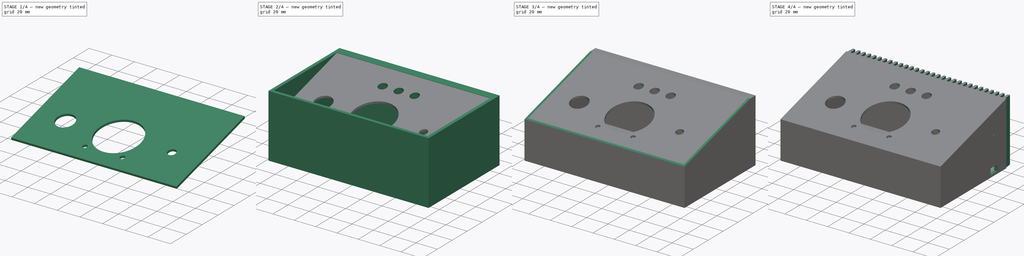
[diagram: build sequence overview — one tinted view per stage of 4, left to right]
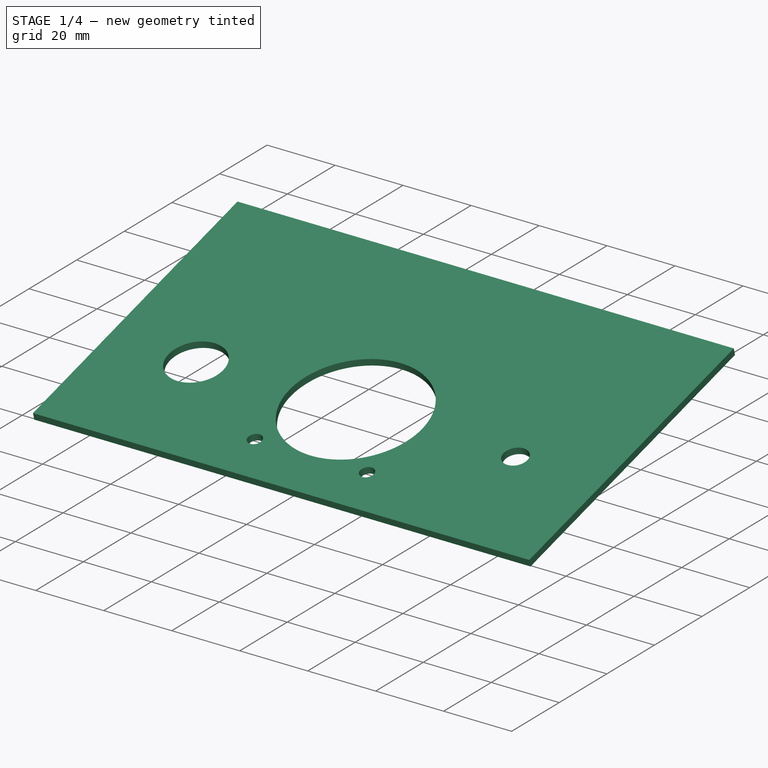
[diagram: stage 1 of 4 — iso view after this stage's code; geometry added in this stage tinted green]
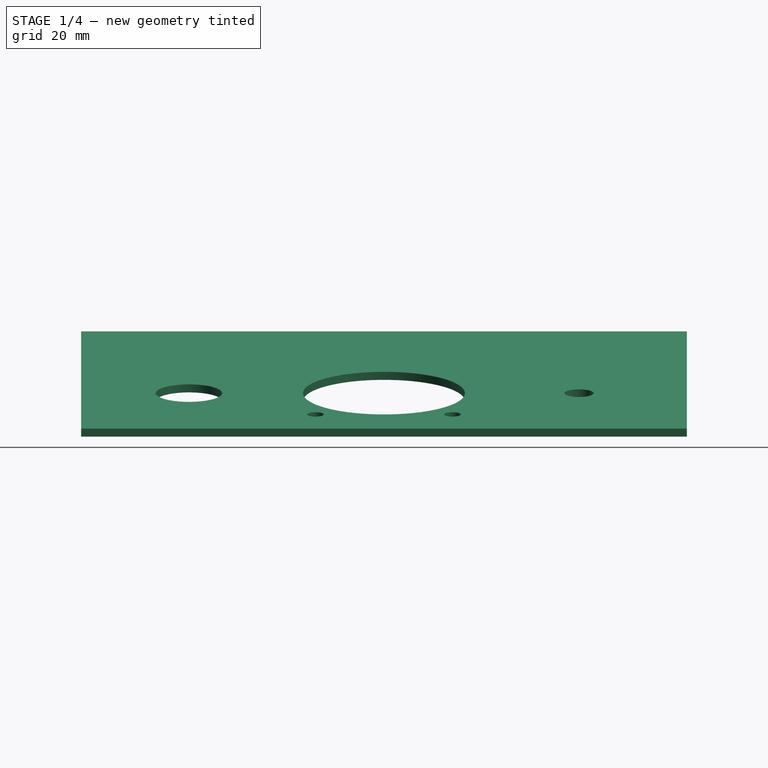
[diagram: stage 1 of 4 — front view after this stage's code; geometry added in this stage tinted green]
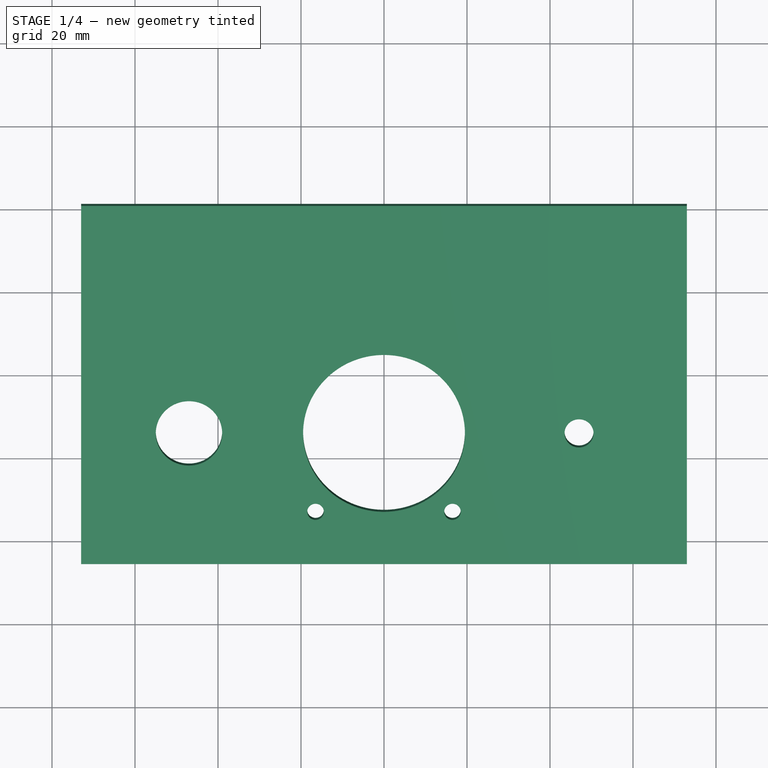
[diagram: stage 1 of 4 — top view after this stage's code; geometry added in this stage tinted green]
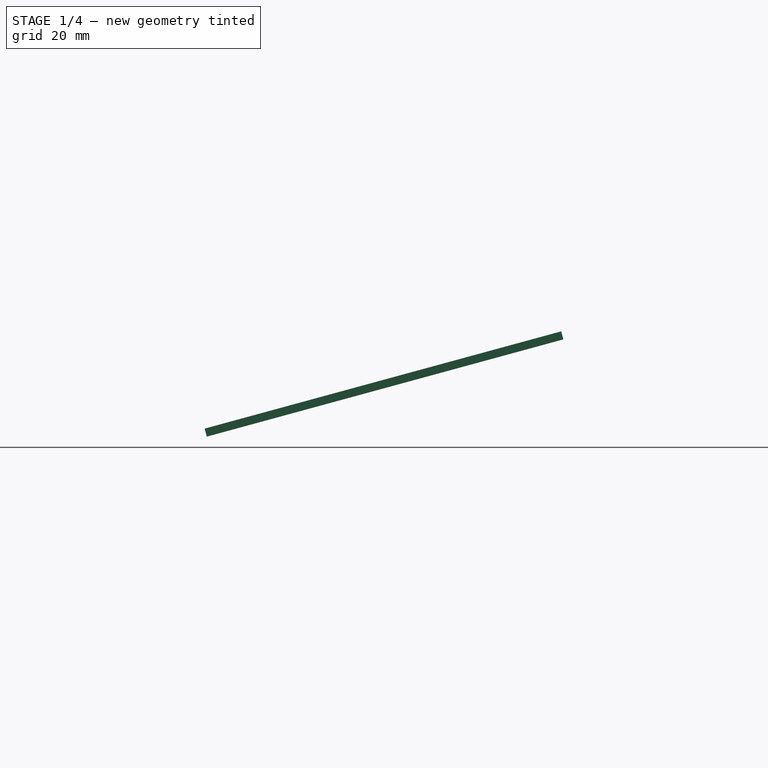
[diagram: stage 1 of 4 — right view after this stage's code; geometry added in this stage tinted green]
FCSTD DOCUMENT  (FreeCAD 0.19R24276 (Git))
Label: AnalogTimer
License: All rights reserved
LicenseURL: http://en.wikipedia.org/wiki/All_rights_reserved
objects: Sketcher::SketchObject×11, PartDesign::Pocket×9, PartDesign::Pad×2, PartDesign::Body×2, PartDesign::ShapeBinder×1, PartDesign::Plane×1
note: 37 computed .brp shape members not serialized (recipe doc carries the construction recipe); baked Part::Feature solids carry a one-line shape summary decoded from their .brp

FEATURE [PartDesign::Body] Body  label="Box"
  Group = -> [Sketch,Pad,Sketch001,Pocket,Sketch003,Pocket001,Sketch004,Pocket002,Sketch005,Pocket003,Sketch006,Pocket004,Sketch007,Pocket005]
  Origin = -> Origin
  Tip = -> Pocket005
FEATURE [PartDesign::ShapeBinder] CopyPocket005  label="TopPlateRecessCopy"
  TraceSupport = false
FEATURE [PartDesign::Plane] DatumPlane  label="TopPlateRestPlane"
  Length = 170.823
  MapMode = 5
  Placement = pos=(0,-11.6468,42.7051) rot=(1,0,0;0.266252rad)
  ResizeMode = 0
  Support = -> [CopyPocket005]
  Width = 130.332
FEATURE [Sketcher::SketchObject] Sketch008
  ExternalGeometry = -> [CopyPocket005]
  FullyConstrained = true
  MapMode = 5
  Placement = pos=(0,-11.6468,42.7051) rot=(1,0,0;0.266252rad)
  Support = -> [DatumPlane]
  sketch-geometry (4):
    g0: LineSegment StartX=-73 StartY=54.5603 StartZ=0 EndX=73 EndY=54.5603 EndZ=0
    g1: LineSegment StartX=73 StartY=54.5603 StartZ=0 EndX=73 EndY=-34.5076 EndZ=0
    g2: LineSegment StartX=73 StartY=-34.5076 StartZ=0 EndX=-73 EndY=-34.5076 EndZ=0
    g3: LineSegment StartX=-73 StartY=-34.5076 StartZ=0 EndX=-73 EndY=54.5603 EndZ=0
  constraints (10):
    c: Coincident(g0,g1)
    c: Coincident(g1,g2)
    c: Coincident(g2,g3)
    c: Coincident(g3,g0)
    c: Horizontal(g0)
    c: Horizontal(g2)
    c: Vertical(g1)
    c: Vertical(g3)
    c: Coincident(g0,g-5)
    c: Coincident(g1,g-4)
FEATURE [PartDesign::Pad] Pad001  label="Body"
  Direction = (1,1,1)
  Length = 2
  Length2 = 100
  Placement = pos=(0,-11.6468,42.7051) rot=(1,0,0;0.266252rad)
  Profile = -> Sketch008
  Type = 0
FEATURE [Sketcher::SketchObject] Sketch009
  ExternalGeometry = -> [Pad001]
  FullyConstrained = true
  MapMode = 5
  Placement = pos=(0,-12.1731,44.6346) rot=(1,0,0;0.266252rad)
  Support = -> [Pad001]
  sketch-geometry (9):
    g0: LineSegment StartX=-22.5 StartY=20.4924 StartZ=0 EndX=22.5 EndY=20.4924 EndZ=0
    g1: LineSegment StartX=22.5 StartY=20.4924 StartZ=0 EndX=22.5 EndY=-24.5076 EndZ=0
    g2: LineSegment StartX=22.5 StartY=-24.5076 StartZ=0 EndX=-22.5 EndY=-24.5076 EndZ=0
    g3: LineSegment StartX=-22.5 StartY=-24.5076 StartZ=0 EndX=-22.5 EndY=20.4924 EndZ=0
    g4: Circle CenterX=0 CenterY=-2.0076 CenterZ=0 NormalX=0 NormalY=0 NormalZ=1 AngleXU=0 Radius=19.5
    g5: LineSegment StartX=-22.5 StartY=-24.5076 StartZ=0 EndX=22.5 EndY=20.4924 EndZ=0
    g6: Circle CenterX=-16.5 CenterY=-21.5076 CenterZ=0 NormalX=0 NormalY=0 NormalZ=1 AngleXU=0 Radius=2
    g7: Circle CenterX=16.5 CenterY=-21.5076 CenterZ=0 NormalX=0 NormalY=0 NormalZ=1 AngleXU=0 Radius=2
    g8: LineSegment StartX=-16.5 StartY=-21.5076 StartZ=0 EndX=16.5 EndY=-21.5076 EndZ=0
  constraints (23):
    c: Coincident(g0,g1)
    c: Coincident(g1,g2)
    c: Coincident(g2,g3)
    c: Coincident(g3,g0)
    c: Horizontal(g2)
    c: Vertical(g1)
    c: Vertical(g3)
    c: DistanceX(g0,g0) = 45
    c: DistanceY(g1,g1) = 45
    c: Symmetric(g0,g0,g-2)
    c: DistanceY(g-6,g1) = 10
    c: Diameter(g4) = 39
    c: PointOnObject(g4,g-2)
    c: Coincident(g5,g2)
    c: Coincident(g5,g0)
    c: PointOnObject(g4,g5)
    c: DistanceX(g6,g7) = 33
    c: Coincident(g8,g6)
    c: Coincident(g8,g7)
    c: Diameter(g6) = 4
    c: Diameter(g7) = 4
    c: Tangent(g4,g8)
    c: Symmetric(g6,g7,g-2)
FEATURE [PartDesign::Pocket] Pocket006  label="AmmeterHoles"
  BaseFeature = -> Pad001
  Length = 5
  Length2 = 100
  Placement = pos=(0,-11.6468,42.7051) rot=(1,0,0;0.266252rad)
  Profile = -> Sketch009
  Type = 0
FEATURE [Sketcher::SketchObject] Sketch010
  ExternalGeometry = -> [Pocket006]
  FullyConstrained = true
  MapMode = 5
  Placement = pos=(0,-12.1731,44.6346) rot=(1,0,0;0.266252rad)
  Support = -> [Pocket006]
  sketch-geometry (3):
    g0: Circle CenterX=-47 CenterY=-2.0076 CenterZ=0 NormalX=0 NormalY=0 NormalZ=1 AngleXU=0 Radius=8
    g1: Circle CenterX=47 CenterY=-2.0076 CenterZ=0 NormalX=0 NormalY=0 NormalZ=1 AngleXU=0 Radius=3.5
    g2: LineSegment StartX=-47 StartY=-2.0076 StartZ=0 EndX=47 EndY=-2.0076 EndZ=0
  constraints (8):
    c: Diameter(g0) = 16
    c: Diameter(g1) = 7
    c: Horizontal(g2)
    c: PointOnObject(g-3,g2)
    c: Coincident(g2,g0)
    c: Coincident(g1,g2)
    c: DistanceX(g-3,g1) = 47
    c: DistanceX(g0,g-3) = 47
FEATURE [PartDesign::Pocket] Pocket007  label="ControlsHoles"
  BaseFeature = -> Pocket006
  Length = 5
  Length2 = 100
  Placement = pos=(0,-11.6468,42.7051) rot=(1,0,0;0.266252rad)
  Profile = -> Sketch010
  Type = 0
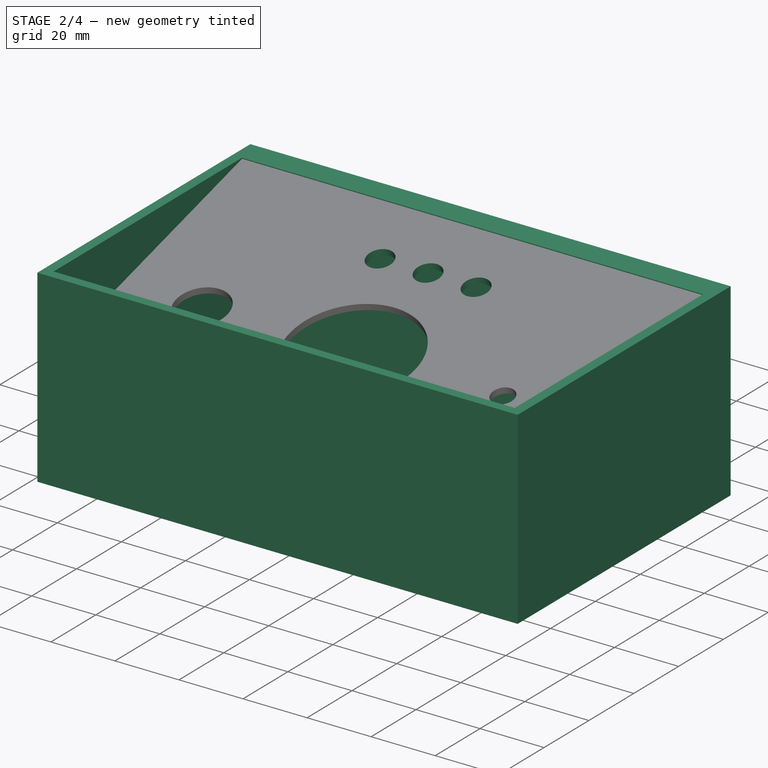
[diagram: stage 2 of 4 — iso view after this stage's code; geometry added in this stage tinted green]
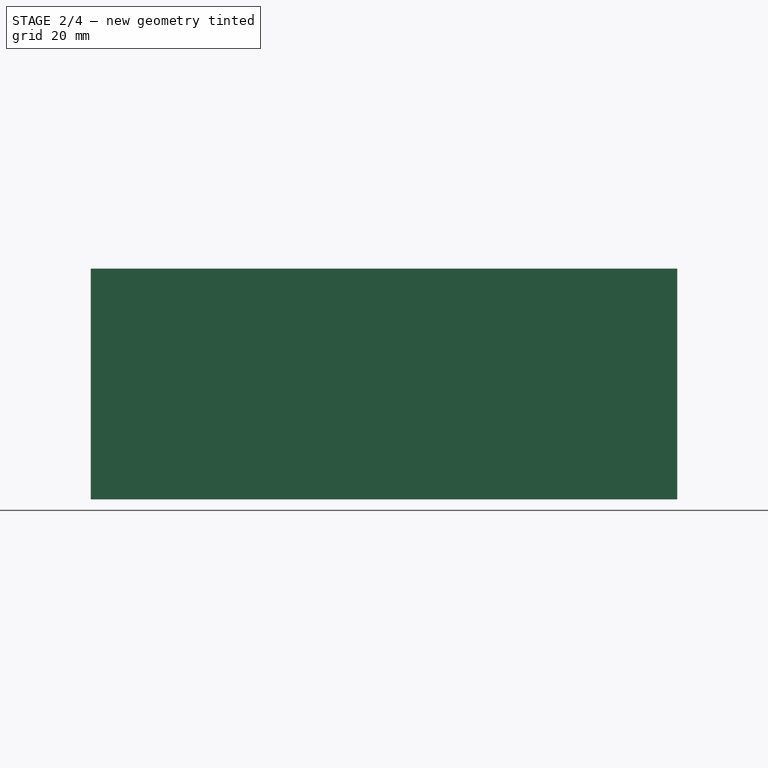
[diagram: stage 2 of 4 — front view after this stage's code; geometry added in this stage tinted green]
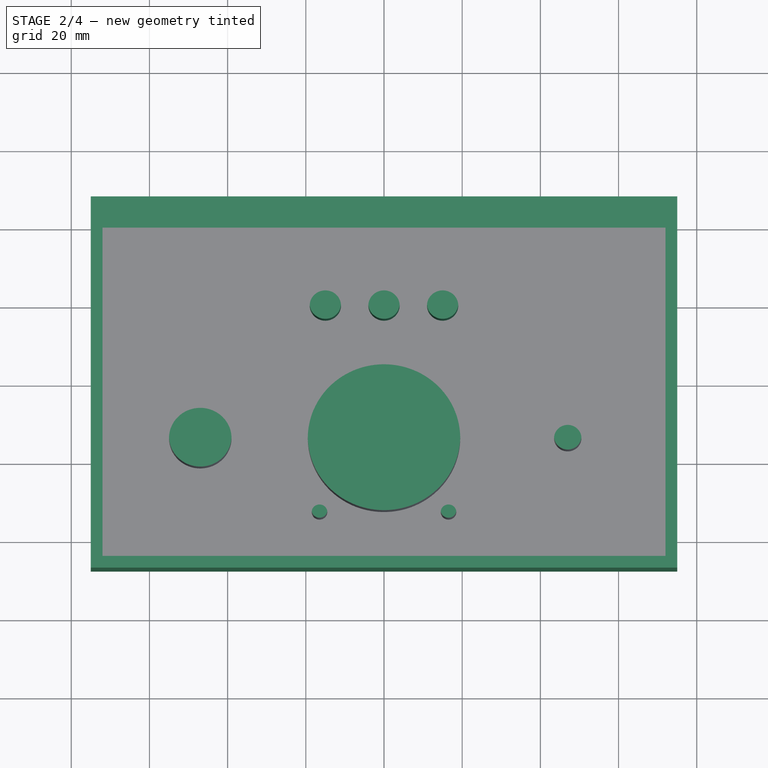
[diagram: stage 2 of 4 — top view after this stage's code; geometry added in this stage tinted green]
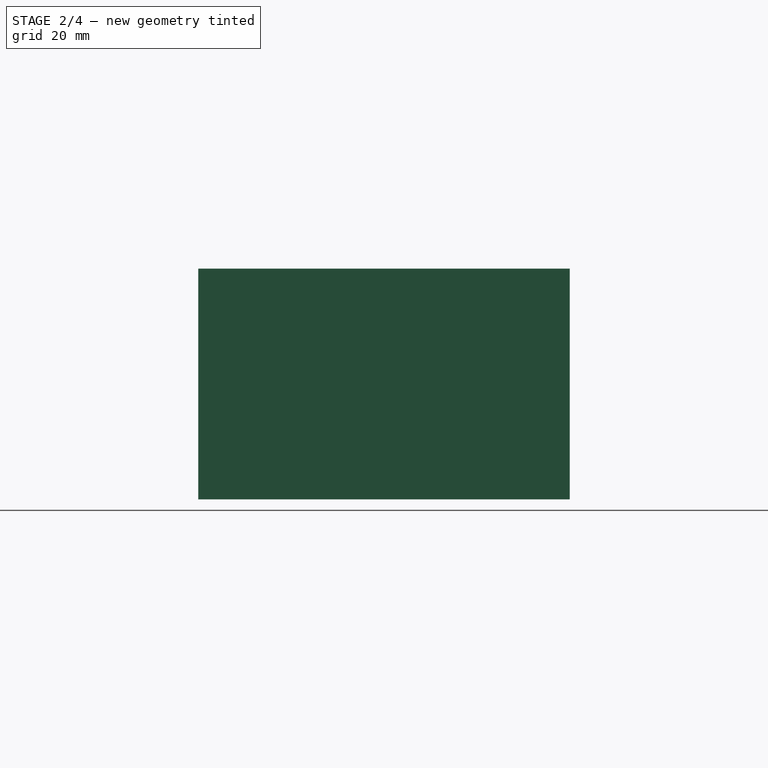
[diagram: stage 2 of 4 — right view after this stage's code; geometry added in this stage tinted green]
FEATURE [Sketcher::SketchObject] Sketch
  FullyConstrained = true
  MapMode = 5
  Support = -> [XY_Plane]
  sketch-geometry (4):
    g0: LineSegment StartX=-75 StartY=47.5 StartZ=0 EndX=75 EndY=47.5 EndZ=0
    g1: LineSegment StartX=75 StartY=47.5 StartZ=0 EndX=75 EndY=-47.5 EndZ=0
    g2: LineSegment StartX=75 StartY=-47.5 StartZ=0 EndX=-75 EndY=-47.5 EndZ=0
    g3: LineSegment StartX=-75 StartY=-47.5 StartZ=0 EndX=-75 EndY=47.5 EndZ=0
  constraints (10):
    c: Coincident(g0,g1)
    c: Coincident(g1,g2)
    c: Coincident(g2,g3)
    c: Coincident(g3,g0)
    c: Horizontal(g2)
    c: Vertical(g3)
    c: DistanceY(g3,g3) = 95
    c: DistanceX(g0,g0) = 150
    c: Symmetric(g0,g0,g-2)
    c: Symmetric(g0,g1,g-1)
FEATURE [PartDesign::Pad] Pad  label="BodyVolume"
  Direction = (1,1,1)
  Length = 59
  Length2 = 100
  Profile = -> Sketch
  Type = 0
FEATURE [Sketcher::SketchObject] Sketch001
  ExternalGeometry = -> [Pad]
  FullyConstrained = true
  MapMode = 5
  Placement = pos=(0,0,59) rot=(0,0,1;0rad)
  Support = -> [Pad]
  sketch-geometry (4):
    g0: LineSegment StartX=-72 StartY=39.5 StartZ=0 EndX=72 EndY=39.5 EndZ=0
    g1: LineSegment StartX=72 StartY=39.5 StartZ=0 EndX=72 EndY=-44.5 EndZ=0
    g2: LineSegment StartX=72 StartY=-44.5 StartZ=0 EndX=-72 EndY=-44.5 EndZ=0
    g3: LineSegment StartX=-72 StartY=-44.5 StartZ=0 EndX=-72 EndY=39.5 EndZ=0
  constraints (11):
    c: Coincident(g0,g1)
    c: Coincident(g1,g2)
    c: Coincident(g2,g3)
    c: Coincident(g3,g0)
    c: Horizontal(g2)
    c: Vertical(g3)
    c: DistanceY(g-5,g1) = 3
    c: Symmetric(g0,g0,g-2)
    c: DistanceX(g1,g-5) = 3
    c: Vertical(g1)
    c: DistanceY(g0,g-4) = 8
FEATURE [PartDesign::Pocket] Pocket  label="BodyHollow"
  BaseFeature = -> Pad
  Length = 57
  Length2 = 100
  Profile = -> Sketch001
  Type = 0
FEATURE [Sketcher::SketchObject] Sketch011
  ExternalGeometry = -> [Pocket007]
  FullyConstrained = true
  MapMode = 5
  Placement = pos=(0,-12.1731,44.6346) rot=(1,0,0;0.266252rad)
  Support = -> [Pocket007]
  sketch-geometry (7):
    g0: Circle CenterX=-15 CenterY=32.9924 CenterZ=0 NormalX=0 NormalY=0 NormalZ=1 AngleXU=0 Radius=4
    g1: Circle CenterX=0 CenterY=32.9924 CenterZ=0 NormalX=0 NormalY=0 NormalZ=1 AngleXU=0 Radius=4
    g2: Circle CenterX=15 CenterY=32.9924 CenterZ=0 NormalX=0 NormalY=0 NormalZ=1 AngleXU=0 Radius=4
    g3: LineSegment StartX=-15 StartY=32.9924 StartZ=0 EndX=15 EndY=32.9924 EndZ=0
    g4: Circle CenterX=-15 CenterY=32.9924 CenterZ=0 NormalX=0 NormalY=0 NormalZ=1 AngleXU=0 Radius=5
    g5: Circle CenterX=0 CenterY=32.9924 CenterZ=0 NormalX=0 NormalY=0 NormalZ=1 AngleXU=0 Radius=5
    g6: Circle CenterX=15 CenterY=32.9924 CenterZ=0 NormalX=0 NormalY=0 NormalZ=1 AngleXU=0 Radius=5
  constraints (16):
    c: Diameter(g0) = 8
    c: Diameter(g1) = 8
    c: Diameter(g2) = 8
    c: Symmetric(g3,g3,g-2)
    c: DistanceY(g-5,g3) = 35
    c: Coincident(g4,g0)
    c: Coincident(g5,g1)
    c: Coincident(g6,g2)
    c: Diameter(g4) = 10
    c: Diameter(g5) = 10
    c: Diameter(g6) = 10
    c: DistanceX(g3,g3) = 30
    c: Coincident(g0,g3)
    c: Coincident(g2,g3)
    c: PointOnObject(g1,g-2)
    c: PointOnObject(g1,g3)
FEATURE [PartDesign::Pocket] Pocket008  label="IndicatorsHoles"
  BaseFeature = -> Pocket007
  Length = 5
  Length2 = 100
  Placement = pos=(0,-11.6468,42.7051) rot=(1,0,0;0.266252rad)
  Profile = -> Sketch011
  Type = 0
FEATURE [PartDesign::Body] Body001  label="TopPlate"
  Group = -> [DatumPlane,CopyPocket005,Sketch008,Pad001,Sketch009,Pocket006,Sketch010,Pocket007,Sketch011,Pocket008]
  Origin = -> Origin001
  Tip = -> Pocket008
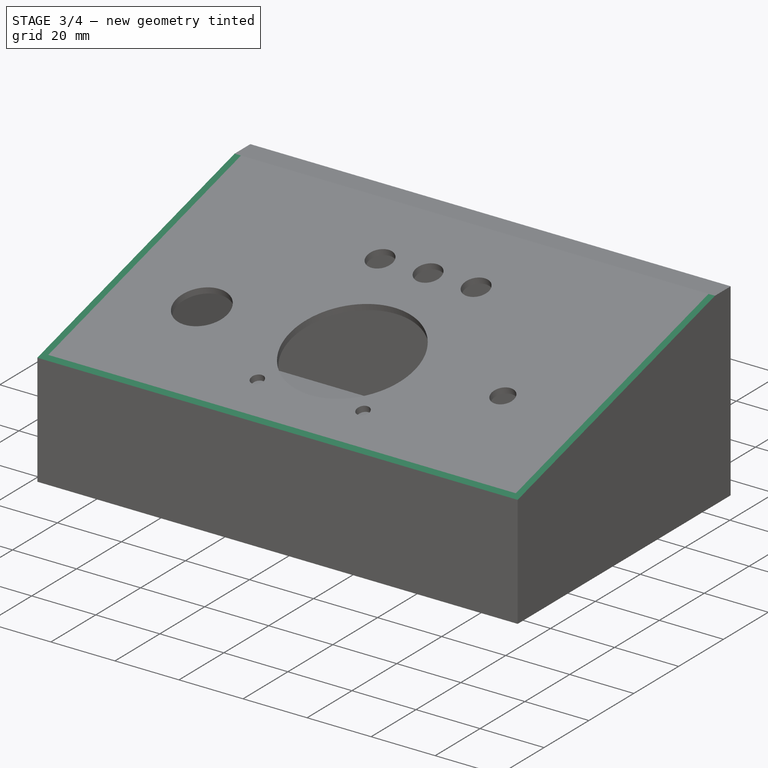
[diagram: stage 3 of 4 — iso view after this stage's code; geometry added in this stage tinted green]
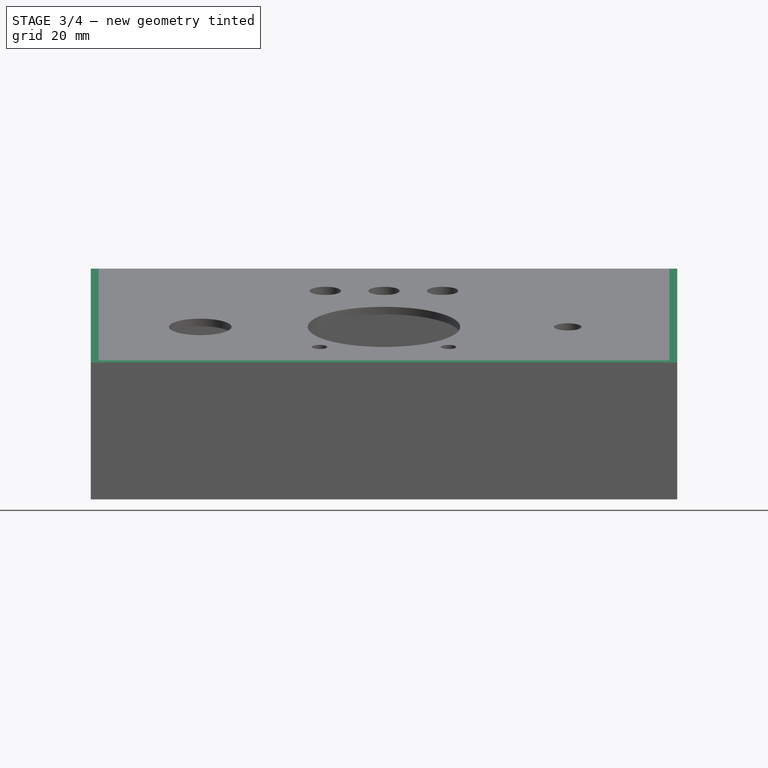
[diagram: stage 3 of 4 — front view after this stage's code; geometry added in this stage tinted green]
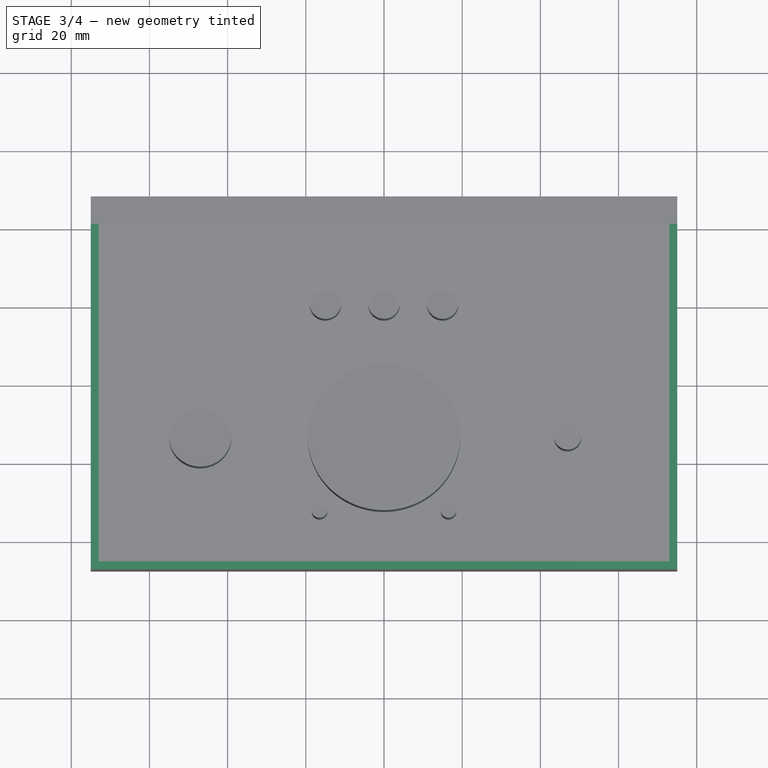
[diagram: stage 3 of 4 — top view after this stage's code; geometry added in this stage tinted green]
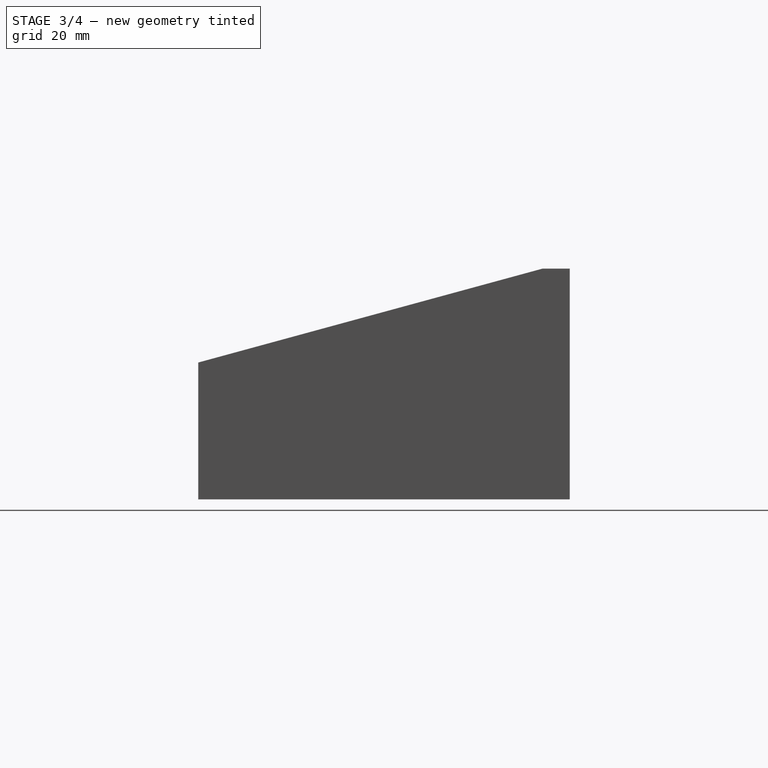
[diagram: stage 3 of 4 — right view after this stage's code; geometry added in this stage tinted green]
FEATURE [Sketcher::SketchObject] Sketch003
  ExternalGeometry = -> [Pocket]
  FullyConstrained = true
  MapMode = 5
  Placement = pos=(76,0,0) rot=(0.57735,0.57735,0.57735;2.0944rad)
  sketch-geometry (6):
    g0: LineSegment StartX=40.5 StartY=0 StartZ=0 EndX=40.5 EndY=59 EndZ=0
    g1: LineSegment StartX=40.5 StartY=59 StartZ=0 EndX=-47.5 EndY=35 EndZ=0
    g2: LineSegment StartX=-47.5 StartY=35 StartZ=0 EndX=-47.5 EndY=0 EndZ=0
    g3: LineSegment StartX=-47.5 StartY=35 StartZ=0 EndX=-47.5 EndY=59 EndZ=0
    g4: LineSegment StartX=-47.5 StartY=59 StartZ=0 EndX=40.5 EndY=59 EndZ=0
    g5: LineSegment StartX=40.5 StartY=59 StartZ=0 EndX=-47.5 EndY=35 EndZ=0
  constraints (15):
    c: Vertical(g0)
    c: Vertical(g2)
    c: DistanceY(g2,g2) = 35
    c: Coincident(g1,g0)
    c: Coincident(g1,g2)
    c: PointOnObject(g0,g-1)
    c: DistanceX(g0,g-3) = 7
    c: PointOnObject(g0,g-4)
    c: Coincident(g2,g-5)
    c: Coincident(g3,g1)
    c: Coincident(g3,g-5)
    c: Coincident(g4,g3)
    c: Coincident(g4,g0)
    c: Coincident(g5,g4)
    c: Coincident(g5,g3)
FEATURE [PartDesign::Pocket] Pocket001  label="SlantBodyCut"
  BaseFeature = -> Pocket
  Length = 5
  Length2 = 100
  Profile = -> Sketch003
  Type = 1
FEATURE [Sketcher::SketchObject] Sketch004
  ExternalGeometry = -> [Pocket001]
  FullyConstrained = true
  MapMode = 5
  Placement = pos=(0,-12.1731,44.6346) rot=(1,0,0;0.266252rad)
  Support = -> [Pocket001]
  sketch-geometry (4):
    g0: LineSegment StartX=-73 StartY=54.5603 StartZ=0 EndX=73 EndY=54.5603 EndZ=0
    g1: LineSegment StartX=73 StartY=54.5603 StartZ=0 EndX=73 EndY=-34.5076 EndZ=0
    g2: LineSegment StartX=73 StartY=-34.5076 StartZ=0 EndX=-73 EndY=-34.5076 EndZ=0
    g3: LineSegment StartX=-73 StartY=-34.5076 StartZ=0 EndX=-73 EndY=54.5603 EndZ=0
  constraints (11):
    c: Coincident(g0,g1)
    c: Coincident(g1,g2)
    c: Coincident(g2,g3)
    c: Coincident(g3,g0)
    c: Horizontal(g0)
    c: Vertical(g1)
    c: Vertical(g3)
    c: Symmetric(g2,g1,g-2)
    c: DistanceX(g-4,g1) = 1
    c: DistanceY(g1,g-4) = 1
    c: DistanceY(g-6,g0) = 1
FEATURE [PartDesign::Pocket] Pocket002  label="TopPlateRecess"
  BaseFeature = -> Pocket001
  Length = 2
  Length2 = 100
  Profile = -> Sketch004
  Type = 0
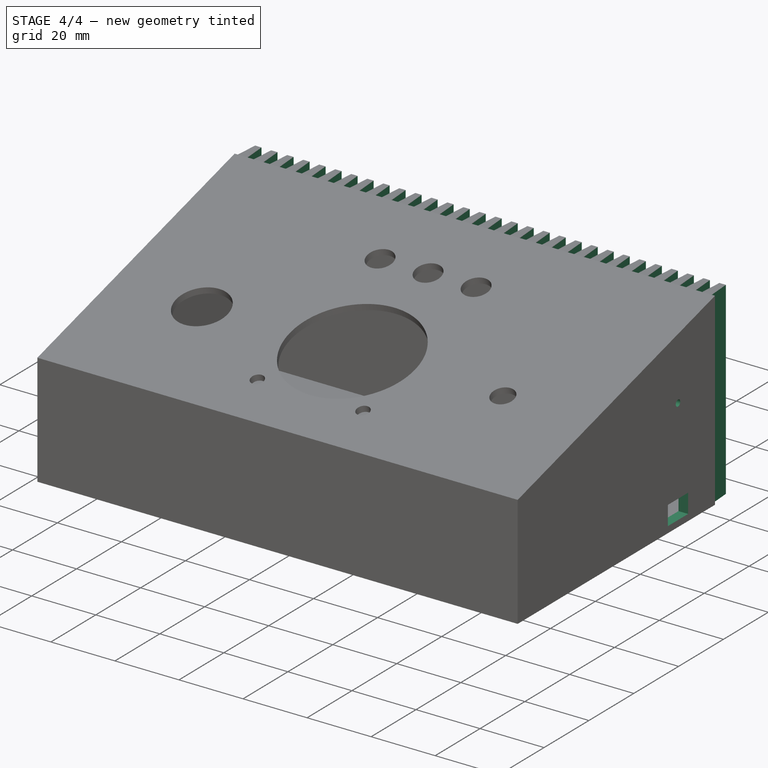
[diagram: stage 4 of 4 — iso view after this stage's code; geometry added in this stage tinted green]
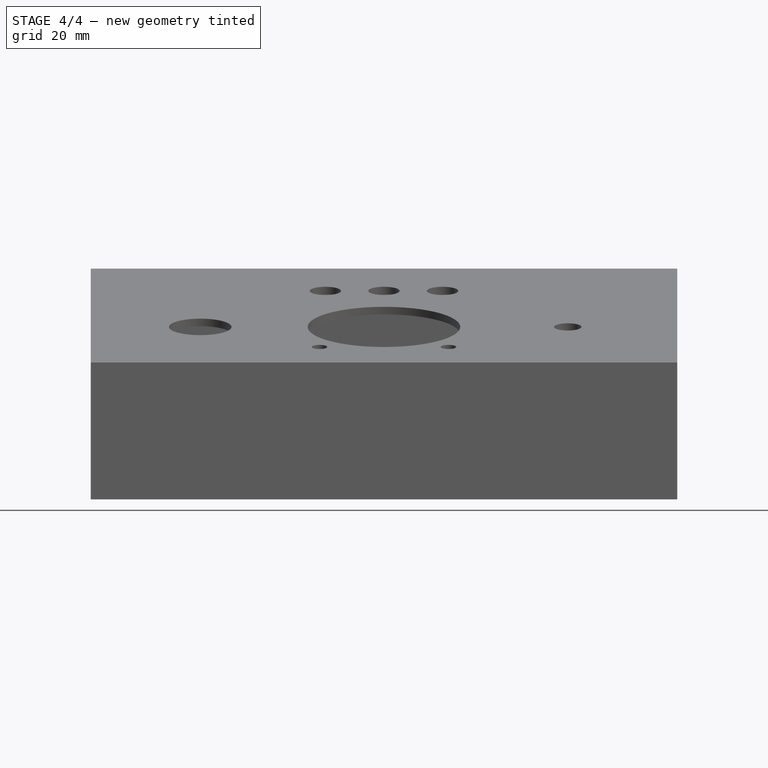
[diagram: stage 4 of 4 — front view after this stage's code; geometry added in this stage tinted green]
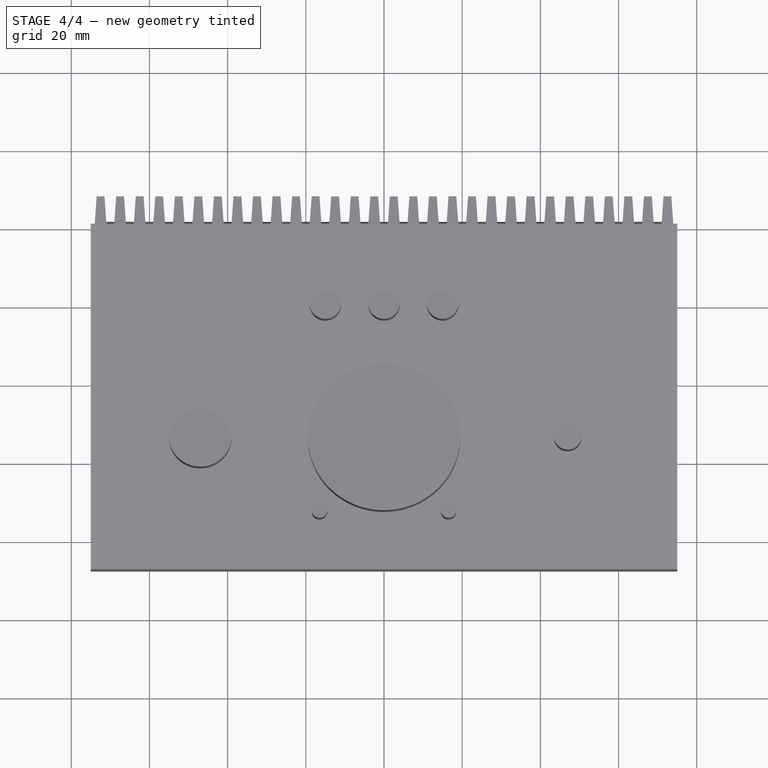
[diagram: stage 4 of 4 — top view after this stage's code; geometry added in this stage tinted green]
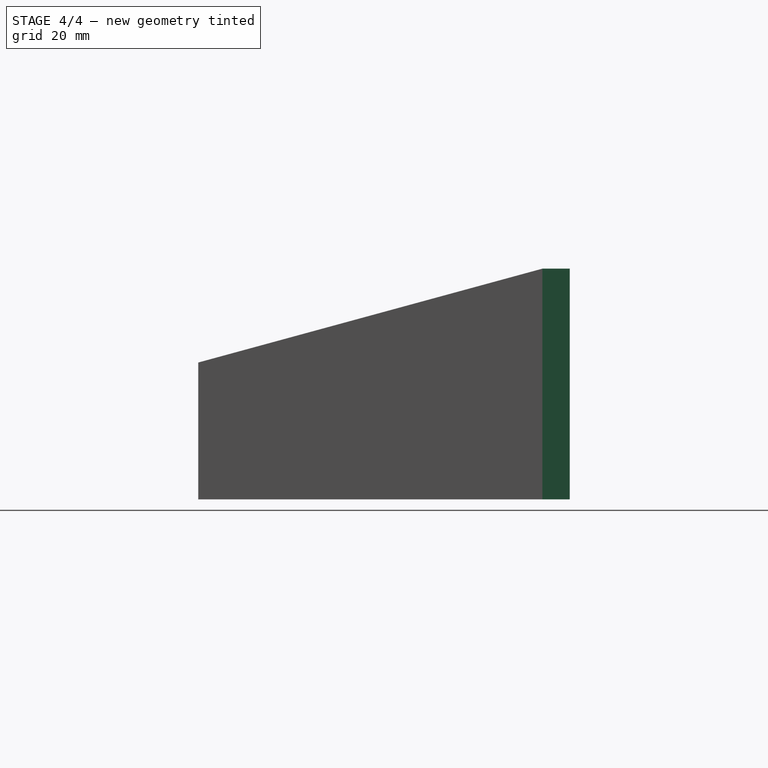
[diagram: stage 4 of 4 — right view after this stage's code; geometry added in this stage tinted green]
FEATURE [Sketcher::SketchObject] Sketch005
  ExternalGeometry = -> [Pocket002]
  FullyConstrained = false
  MapMode = 5
  Placement = pos=(0,0,59) rot=(0,0,1;0rad)
  Support = -> [Pocket002]
  sketch-geometry (156):
    g0: LineSegment StartX=-76.5 StartY=47.5 StartZ=0 EndX=-73.5 EndY=47.5 EndZ=0
    g1: LineSegment StartX=-75 StartY=47.5 StartZ=0 EndX=-75 EndY=40.5 EndZ=0
    g2: LineSegment StartX=-76 StartY=40.5 StartZ=0 EndX=-74 EndY=40.5 EndZ=0
    g3: LineSegment StartX=-74 StartY=40.5 StartZ=0 EndX=-73.5 EndY=47.5 EndZ=0
    g4: LineSegment StartX=-76.5 StartY=47.5 StartZ=0 EndX=-76 EndY=40.5 EndZ=0
    g5: LineSegment StartX=-74 StartY=40.5 StartZ=0 EndX=-69 EndY=40.5 EndZ=0
    g6: LineSegment StartX=-71.5 StartY=47.5 StartZ=0 EndX=-71 EndY=40.5 EndZ=0
    g7: LineSegment StartX=-71 StartY=40.5 StartZ=0 EndX=-69 EndY=40.5 EndZ=0
    g8: LineSegment StartX=-69 StartY=40.5 StartZ=0 EndX=-68.5 EndY=47.5 EndZ=0
    g9: LineSegment StartX=-71.5 StartY=47.5 StartZ=0 EndX=-68.5 EndY=47.5 EndZ=0
    g10: LineSegment StartX=-76.5 StartY=47.5 StartZ=0 EndX=-71.5 EndY=47.5 EndZ=0
    g11: LineSegment StartX=-66.5 StartY=47.5 StartZ=0 EndX=-66 EndY=40.5 EndZ=0
    g12: LineSegment StartX=-66 StartY=40.5 StartZ=0 EndX=-64 EndY=40.5 EndZ=0
    g13: LineSegment StartX=-64 StartY=40.5 StartZ=0 EndX=-63.5 EndY=47.5 EndZ=0
    g14: LineSegment StartX=-66.5 StartY=47.5 StartZ=0 EndX=-63.5 EndY=47.5 EndZ=0
    g15: LineSegment StartX=-71.5 StartY=47.5 StartZ=0 EndX=-66.5 EndY=47.5 EndZ=0
    g16: LineSegment StartX=-61.5 StartY=47.5 StartZ=0 EndX=-61 EndY=40.5 EndZ=0
    g17: LineSegment StartX=-61 StartY=40.5 StartZ=0 EndX=-59 EndY=40.5 EndZ=0
    g18: LineSegment StartX=-59 StartY=40.5 StartZ=0 EndX=-58.5 EndY=47.5 EndZ=0
    g19: LineSegment StartX=-61.5 StartY=47.5 StartZ=0 EndX=-58.5 EndY=47.5 EndZ=0
    g20: LineSegment StartX=-66.5 StartY=47.5 StartZ=0 EndX=-61.5 EndY=47.5 EndZ=0
    g21: LineSegment StartX=-56.5 StartY=47.5 StartZ=0 EndX=-56 EndY=40.5 EndZ=0
    g22: LineSegment StartX=-56 StartY=40.5 StartZ=0 EndX=-54 EndY=40.5 EndZ=0
    g23: LineSegment StartX=-54 StartY=40.5 StartZ=0 EndX=-53.5 EndY=47.5 EndZ=0
    g24: LineSegment StartX=-56.5 StartY=47.5 StartZ=0 EndX=-53.5 EndY=47.5 EndZ=0
    g25: LineSegment StartX=-61.5 StartY=47.5 StartZ=0 EndX=-56.5 EndY=47.5 EndZ=0
    g26: LineSegment StartX=-51.5 StartY=47.5 StartZ=0 EndX=-51 EndY=40.5 EndZ=0
    g27: LineSegment StartX=-51 StartY=40.5 StartZ=0 EndX=-49 EndY=40.5 EndZ=0
    g28: LineSegment StartX=-49 StartY=40.5 StartZ=0 EndX=-48.5 EndY=47.5 EndZ=0
    g29: LineSegment StartX=-51.5 StartY=47.5 StartZ=0 EndX=-48.5 EndY=47.5 EndZ=0
    g30: LineSegment StartX=-56.5 StartY=47.5 StartZ=0 EndX=-51.5 EndY=47.5 EndZ=0
    g31: LineSegment StartX=-46.5 StartY=47.5 StartZ=0 EndX=-46 EndY=40.5 EndZ=0
    g32: LineSegment StartX=-46 StartY=40.5 StartZ=0 EndX=-44 EndY=40.5 EndZ=0
    g33: LineSegment StartX=-44 StartY=40.5 StartZ=0 EndX=-43.5 EndY=47.5 EndZ=0
    g34: LineSegment StartX=-46.5 StartY=47.5 StartZ=0 EndX=-43.5 EndY=47.5 EndZ=0
    g35: LineSegment StartX=-51.5 StartY=47.5 StartZ=0 EndX=-46.5 EndY=47.5 EndZ=0
    g36: LineSegment StartX=-41.5 StartY=47.5 StartZ=0 EndX=-41 EndY=40.5 EndZ=0
    g37: LineSegment StartX=-41 StartY=40.5 StartZ=0 EndX=-39 EndY=40.5 EndZ=0
    g38: LineSegment StartX=-39 StartY=40.5 StartZ=0 EndX=-38.5 EndY=47.5 EndZ=0
    g39: LineSegment StartX=-41.5 StartY=47.5 StartZ=0 EndX=-38.5 EndY=47.5 EndZ=0
    g40: LineSegment StartX=-46.5 StartY=47.5 StartZ=0 EndX=-41.5 EndY=47.5 EndZ=0
    g41: LineSegment StartX=-36.5 StartY=47.5 StartZ=0 EndX=-36 EndY=40.5 EndZ=0
    g42: LineSegment StartX=-36 StartY=40.5 StartZ=0 EndX=-34 EndY=40.5 EndZ=0
    g43: LineSegment StartX=-34 StartY=40.5 StartZ=0 EndX=-33.5 EndY=47.5 EndZ=0
    g44: LineSegment StartX=-36.5 StartY=47.5 StartZ=0 EndX=-33.5 EndY=47.5 EndZ=0
    g45: LineSegment StartX=-41.5 StartY=47.5 StartZ=0 EndX=-36.5 EndY=47.5 EndZ=0
    g46: LineSegment StartX=-31.5 StartY=47.5 StartZ=0 EndX=-31 EndY=40.5 EndZ=0
    g47: LineSegment StartX=-31 StartY=40.5 StartZ=0 EndX=-29 EndY=40.5 EndZ=0
    g48: LineSegment StartX=-29 StartY=40.5 StartZ=0 EndX=-28.5 EndY=47.5 EndZ=0
    g49: LineSegment StartX=-31.5 StartY=47.5 StartZ=0 EndX=-28.5 EndY=47.5 EndZ=0
    g50: LineSegment StartX=-36.5 StartY=47.5 StartZ=0 EndX=-31.5 EndY=47.5 EndZ=0
    g51: LineSegment StartX=-26.5 StartY=47.5 StartZ=0 EndX=-26 EndY=40.5 EndZ=0
    g52: LineSegment StartX=-26 StartY=40.5 StartZ=0 EndX=-24 EndY=40.5 EndZ=0
    g53: LineSegment StartX=-24 StartY=40.5 StartZ=0 EndX=-23.5 EndY=47.5 EndZ=0
    g54: LineSegment StartX=-26.5 StartY=47.5 StartZ=0 EndX=-23.5 EndY=47.5 EndZ=0
    g55: LineSegment StartX=-31.5 StartY=47.5 StartZ=0 EndX=-26.5 EndY=47.5 EndZ=0
    g56: LineSegment StartX=-21.5 StartY=47.5 StartZ=0 EndX=-21 EndY=40.5 EndZ=0
    g57: LineSegment StartX=-21 StartY=40.5 StartZ=0 EndX=-19 EndY=40.5 EndZ=0
    g58: LineSegment StartX=-19 StartY=40.5 StartZ=0 EndX=-18.5 EndY=47.5 EndZ=0
    g59: LineSegment StartX=-21.5 StartY=47.5 StartZ=0 EndX=-18.5 EndY=47.5 EndZ=0
    g60: LineSegment StartX=-26.5 StartY=47.5 StartZ=0 EndX=-21.5 EndY=47.5 EndZ=0
    g61: LineSegment StartX=-16.5 StartY=47.5 StartZ=0 EndX=-16 EndY=40.5 EndZ=0
    g62: LineSegment StartX=-16 StartY=40.5 StartZ=0 EndX=-14 EndY=40.5 EndZ=0
    g63: LineSegment StartX=-14 StartY=40.5 StartZ=0 EndX=-13.5 EndY=47.5 EndZ=0
    g64: LineSegment StartX=-16.5 StartY=47.5 StartZ=0 EndX=-13.5 EndY=47.5 EndZ=0
    g65: LineSegment StartX=-21.5 StartY=47.5 StartZ=0 EndX=-16.5 EndY=47.5 EndZ=0
    g66: LineSegment StartX=-11.5 StartY=47.5 StartZ=0 EndX=-11 EndY=40.5 EndZ=0
    g67: LineSegment StartX=-11 StartY=40.5 StartZ=0 EndX=-9 EndY=40.5 EndZ=0
    g68: LineSegment StartX=-9 StartY=40.5 StartZ=0 EndX=-8.5 EndY=47.5 EndZ=0
    g69: LineSegment StartX=-11.5 StartY=47.5 StartZ=0 EndX=-8.5 EndY=47.5 EndZ=0
    g70: LineSegment StartX=-16.5 StartY=47.5 StartZ=0 EndX=-11.5 EndY=47.5 EndZ=0
    g71: LineSegment StartX=-6.5 StartY=47.5 StartZ=0 EndX=-6 EndY=40.5 EndZ=0
    g72: LineSegment StartX=-6 StartY=40.5 StartZ=0 EndX=-4 EndY=40.5 EndZ=0
    g73: LineSegment StartX=-4 StartY=40.5 StartZ=0 EndX=-3.5 EndY=47.5 EndZ=0
    g74: LineSegment StartX=-6.5 StartY=47.5 StartZ=0 EndX=-3.5 EndY=47.5 EndZ=0
    g75: LineSegment StartX=-11.5 StartY=47.5 StartZ=0 EndX=-6.5 EndY=47.5 EndZ=0
    g76: LineSegment StartX=-1.5 StartY=47.5 StartZ=0 EndX=-1 EndY=40.5 EndZ=0
    g77: LineSegment StartX=-1 StartY=40.5 StartZ=0 EndX=1 EndY=40.5 EndZ=0
    g78: LineSegment StartX=1 StartY=40.5 StartZ=0 EndX=1.5 EndY=47.5 EndZ=0
    g79: LineSegment StartX=-1.5 StartY=47.5 StartZ=0 EndX=1.5 EndY=47.5 EndZ=0
    g80: LineSegment StartX=-6.5 StartY=47.5 StartZ=0 EndX=-1.5 EndY=47.5 EndZ=0
    g81: LineSegment StartX=3.5 StartY=47.5 StartZ=0 EndX=4 EndY=40.5 EndZ=0
    g82: LineSegment StartX=4 StartY=40.5 StartZ=0 EndX=6 EndY=40.5 EndZ=0
    g83: LineSegment StartX=6 StartY=40.5 StartZ=0 EndX=6.5 EndY=47.5 EndZ=0
    g84: LineSegment StartX=3.5 StartY=47.5 StartZ=0 EndX=6.5 EndY=47.5 EndZ=0
    g85: LineSegment StartX=-1.5 StartY=47.5 StartZ=0 EndX=3.5 EndY=47.5 EndZ=0
    g86: LineSegment StartX=8.5 StartY=47.5 StartZ=0 EndX=9 EndY=40.5 EndZ=0
    g87: LineSegment StartX=9 StartY=40.5 StartZ=0 EndX=11 EndY=40.5 EndZ=0
    g88: LineSegment StartX=11 StartY=40.5 StartZ=0 EndX=11.5 EndY=47.5 EndZ=0
    g89: LineSegment StartX=8.5 StartY=47.5 StartZ=0 EndX=11.5 EndY=47.5 EndZ=0
    g90: LineSegment StartX=3.5 StartY=47.5 StartZ=0 EndX=8.5 EndY=47.5 EndZ=0
    g91: LineSegment StartX=13.5 StartY=47.5 StartZ=0 EndX=14 EndY=40.5 EndZ=0
    g92: LineSegment StartX=14 StartY=40.5 StartZ=0 EndX=16 EndY=40.5 EndZ=0
    g93: LineSegment StartX=16 StartY=40.5 StartZ=0 EndX=16.5 EndY=47.5 EndZ=0
    g94: LineSegment StartX=13.5 StartY=47.5 StartZ=0 EndX=16.5 EndY=47.5 EndZ=0
    g95: LineSegment StartX=8.5 StartY=47.5 StartZ=0 EndX=13.5 EndY=47.5 EndZ=0
    g96: LineSegment StartX=18.5 StartY=47.5 StartZ=0 EndX=19 EndY=40.5 EndZ=0
    g97: LineSegment StartX=19 StartY=40.5 StartZ=0 EndX=21 EndY=40.5 EndZ=0
    g98: LineSegment StartX=21 StartY=40.5 StartZ=0 EndX=21.5 EndY=47.5 EndZ=0
    g99: LineSegment StartX=18.5 StartY=47.5 StartZ=0 EndX=21.5 EndY=47.5 EndZ=0
    g100: LineSegment StartX=13.5 StartY=47.5 StartZ=0 EndX=18.5 EndY=47.5 EndZ=0
    g101: LineSegment StartX=23.5 StartY=47.5 StartZ=0 EndX=24 EndY=40.5 EndZ=0
    g102: LineSegment StartX=24 StartY=40.5 StartZ=0 EndX=26 EndY=40.5 EndZ=0
    g103: LineSegment StartX=26 StartY=40.5 StartZ=0 EndX=26.5 EndY=47.5 EndZ=0
    g104: LineSegment StartX=23.5 StartY=47.5 StartZ=0 EndX=26.5 EndY=47.5 EndZ=0
    g105: LineSegment StartX=18.5 StartY=47.5 StartZ=0 EndX=23.5 EndY=47.5 EndZ=0
    g106: LineSegment StartX=28.5 StartY=47.5 StartZ=0 EndX=29 EndY=40.5 EndZ=0
    g107: LineSegment StartX=29 StartY=40.5 StartZ=0 EndX=31 EndY=40.5 EndZ=0
    g108: LineSegment StartX=31 StartY=40.5 StartZ=0 EndX=31.5 EndY=47.5 EndZ=0
    g109: LineSegment StartX=28.5 StartY=47.5 StartZ=0 EndX=31.5 EndY=47.5 EndZ=0
    g110: LineSegment StartX=23.5 StartY=47.5 StartZ=0 EndX=28.5 EndY=47.5 EndZ=0
    g111: LineSegment StartX=33.5 StartY=47.5 StartZ=0 EndX=34 EndY=40.5 EndZ=0
    g112: LineSegment StartX=34 StartY=40.5 StartZ=0 EndX=36 EndY=40.5 EndZ=0
    g113: LineSegment StartX=36 StartY=40.5 StartZ=0 EndX=36.5 EndY=47.5 EndZ=0
    g114: LineSegment StartX=33.5 StartY=47.5 StartZ=0 EndX=36.5 EndY=47.5 EndZ=0
    g115: LineSegment StartX=28.5 StartY=47.5 StartZ=0 EndX=33.5 EndY=47.5 EndZ=0
    g116: LineSegment StartX=38.5 StartY=47.5 StartZ=0 EndX=39 EndY=40.5 EndZ=0
    g117: LineSegment StartX=39 StartY=40.5 StartZ=0 EndX=41 EndY=40.5 EndZ=0
    g118: LineSegment StartX=41 StartY=40.5 StartZ=0 EndX=41.5 EndY=47.5 EndZ=0
    g119: LineSegment StartX=38.5 StartY=47.5 StartZ=0 EndX=41.5 EndY=47.5 EndZ=0
    g120: LineSegment StartX=33.5 StartY=47.5 StartZ=0 EndX=38.5 EndY=47.5 EndZ=0
    g121: LineSegment StartX=43.5 StartY=47.5 StartZ=0 EndX=44 EndY=40.5 EndZ=0
    g122: LineSegment StartX=44 StartY=40.5 StartZ=0 EndX=46 EndY=40.5 EndZ=0
    g123: LineSegment StartX=46 StartY=40.5 StartZ=0 EndX=46.5 EndY=47.5 EndZ=0
    g124: LineSegment StartX=43.5 StartY=47.5 StartZ=0 EndX=46.5 EndY=47.5 EndZ=0
    g125: LineSegment StartX=38.5 StartY=47.5 StartZ=0 EndX=43.5 EndY=47.5 EndZ=0
    g126: LineSegment StartX=48.5 StartY=47.5 StartZ=0 EndX=49 EndY=40.5 EndZ=0
    g127: LineSegment StartX=49 StartY=40.5 StartZ=0 EndX=51 EndY=40.5 EndZ=0
    g128: LineSegment StartX=51 StartY=40.5 StartZ=0 EndX=51.5 EndY=47.5 EndZ=0
    g129: LineSegment StartX=48.5 StartY=47.5 StartZ=0 EndX=51.5 EndY=47.5 EndZ=0
    g130: LineSegment StartX=43.5 StartY=47.5 StartZ=0 EndX=48.5 EndY=47.5 EndZ=0
    g131: LineSegment StartX=53.5 StartY=47.5 StartZ=0 EndX=54 EndY=40.5 EndZ=0
    g132: LineSegment StartX=54 StartY=40.5 StartZ=0 EndX=56 EndY=40.5 EndZ=0
    g133: LineSegment StartX=56 StartY=40.5 StartZ=0 EndX=56.5 EndY=47.5 EndZ=0
    g134: LineSegment StartX=53.5 StartY=47.5 StartZ=0 EndX=56.5 EndY=47.5 EndZ=0
    g135: LineSegment StartX=48.5 StartY=47.5 StartZ=0 EndX=53.5 EndY=47.5 EndZ=0
    g136: LineSegment StartX=58.5 StartY=47.5 StartZ=0 EndX=59 EndY=40.5 EndZ=0
    g137: LineSegment StartX=59 StartY=40.5 StartZ=0 EndX=61 EndY=40.5 EndZ=0
    g138: LineSegment StartX=61 StartY=40.5 StartZ=0 EndX=61.5 EndY=47.5 EndZ=0
    g139: LineSegment StartX=58.5 StartY=47.5 StartZ=0 EndX=61.5 EndY=47.5 EndZ=0
    g140: LineSegment StartX=53.5 StartY=47.5 StartZ=0 EndX=58.5 EndY=47.5 EndZ=0
    g141: LineSegment StartX=63.5 StartY=47.5 StartZ=0 EndX=64 EndY=40.5 EndZ=0
    g142: LineSegment StartX=64 StartY=40.5 StartZ=0 EndX=66 EndY=40.5 EndZ=0
    g143: LineSegment StartX=66 StartY=40.5 StartZ=0 EndX=66.5 EndY=47.5 EndZ=0
    g144: LineSegment StartX=63.5 StartY=47.5 StartZ=0 EndX=66.5 EndY=47.5 EndZ=0
    g145: LineSegment StartX=58.5 StartY=47.5 StartZ=0 EndX=63.5 EndY=47.5 EndZ=0
    g146: LineSegment StartX=68.5 StartY=47.5 StartZ=0 EndX=69 EndY=40.5 EndZ=0
    g147: LineSegment StartX=69 StartY=40.5 StartZ=0 EndX=71 EndY=40.5 EndZ=0
    g148: LineSegment StartX=71 StartY=40.5 StartZ=0 EndX=71.5 EndY=47.5 EndZ=0
    g149: LineSegment StartX=68.5 StartY=47.5 StartZ=0 EndX=71.5 EndY=47.5 EndZ=0
    g150: LineSegment StartX=63.5 StartY=47.5 StartZ=0 EndX=68.5 EndY=47.5 EndZ=0
    g151: LineSegment StartX=73.5 StartY=47.5 StartZ=0 EndX=74 EndY=40.5 EndZ=0
    g152: LineSegment StartX=74 StartY=40.5 StartZ=0 EndX=76 EndY=40.5 EndZ=0
    g153: LineSegment StartX=76 StartY=40.5 StartZ=0 EndX=76.5 EndY=47.5 EndZ=0
    g154: LineSegment StartX=73.5 StartY=47.5 StartZ=0 EndX=76.5 EndY=47.5 EndZ=0
    g155: LineSegment StartX=68.5 StartY=47.5 StartZ=0 EndX=73.5 EndY=47.5 EndZ=0
  constraints (315):
    c: Coincident(g1,g-6)
    c: Coincident(g1,g-6)
    c: Symmetric(g0,g0,g1)
    c: PointOnObject(g1,g0)
    c: Symmetric(g2,g2,g1)
    c: PointOnObject(g1,g2)
    c: DistanceX(g0,g0) = 3
    c: DistanceX(g2,g2) = 2
    c: Coincident(g3,g2)
    c: Coincident(g3,g0)
    c: Coincident(g4,g0)
    c: Coincident(g4,g2)
    c: Coincident(g5,g2)
    c: Horizontal(g5)
    c: DistanceX(g5,g5) = 5
    c: DistanceX(g9,g9) = 3
    c: DistanceX(g7,g7) = 2
    c: Coincident(g8,g7)
    c: Coincident(g8,g9)
    c: Coincident(g6,g9)
    c: Coincident(g6,g7)
    c: Coincident(g4,g10)
    c: Coincident(g6,g10)
    c: Distance(g10) = 5
    c: Angle(g10) = 0
    c: DistanceX(g14,g14) = 3
    c: DistanceX(g12,g12) = 2
    c: Coincident(g13,g12)
    c: Coincident(g13,g14)
    c: Coincident(g11,g14)
    c: Coincident(g11,g12)
    c: Coincident(g6,g15)
    c: Coincident(g11,g15)
    c: Equal(g10,g15)
    c: Parallel(g15,g10)
    c: DistanceX(g19,g19) = 3
    c: DistanceX(g17,g17) = 2
    c: Coincident(g18,g17)
    c: Coincident(g18,g19)
    c: Coincident(g16,g19)
    c: Coincident(g16,g17)
    c: Coincident(g11,g20)
    c: Coincident(g16,g20)
    c: Equal(g10,g20)
    c: Parallel(g20,g10)
    c: DistanceX(g24,g24) = 3
    c: DistanceX(g22,g22) = 2
    c: Coincident(g23,g22)
    c: Coincident(g23,g24)
    c: Coincident(g21,g24)
    c: Coincident(g21,g22)
    c: Coincident(g16,g25)
    c: Coincident(g21,g25)
    c: Equal(g10,g25)
    c: Parallel(g25,g10)
    c: DistanceX(g29,g29) = 3
    c: DistanceX(g27,g27) = 2
    c: Coincident(g28,g27)
    c: Coincident(g28,g29)
    c: Coincident(g26,g29)
    c: Coincident(g26,g27)
    c: Coincident(g21,g30)
    c: Coincident(g26,g30)
    c: Equal(g10,g30)
    c: Parallel(g30,g10)
    c: DistanceX(g34,g34) = 3
    c: DistanceX(g32,g32) = 2
    c: Coincident(g33,g32)
    c: Coincident(g33,g34)
    c: Coincident(g31,g34)
    c: Coincident(g31,g32)
    c: Coincident(g26,g35)
    c: Coincident(g31,g35)
    c: Equal(g10,g35)
    c: Parallel(g35,g10)
    c: DistanceX(g39,g39) = 3
    c: DistanceX(g37,g37) = 2
    c: Coincident(g38,g37)
    c: Coincident(g38,g39)
    c: Coincident(g36,g39)
    c: Coincident(g36,g37)
    c: Coincident(g31,g40)
    c: Coincident(g36,g40)
    c: Equal(g10,g40)
    c: Parallel(g40,g10)
    c: DistanceX(g44,g44) = 3
    c: DistanceX(g42,g42) = 2
    c: Coincident(g43,g42)
    c: Coincident(g43,g44)
    c: Coincident(g41,g44)
    c: Coincident(g41,g42)
    c: Coincident(g36,g45)
    c: Coincident(g41,g45)
    c: Equal(g10,g45)
    c: Parallel(g45,g10)
    c: DistanceX(g49,g49) = 3
    c: DistanceX(g47,g47) = 2
    c: Coincident(g48,g47)
    c: Coincident(g48,g49)
    c: Coincident(g46,g49)
    c: Coincident(g46,g47)
    c: Coincident(g41,g50)
    c: Coincident(g46,g50)
    c: Equal(g10,g50)
    c: Parallel(g50,g10)
    c: DistanceX(g54,g54) = 3
    c: DistanceX(g52,g52) = 2
    c: Coincident(g53,g52)
    c: Coincident(g53,g54)
    c: Coincident(g51,g54)
    c: Coincident(g51,g52)
    c: Coincident(g46,g55)
    c: Coincident(g51,g55)
    c: Equal(g10,g55)
    c: Parallel(g55,g10)
    c: DistanceX(g59,g59) = 3
    c: DistanceX(g57,g57) = 2
    c: Coincident(g58,g57)
    c: Coincident(g58,g59)
    c: Coincident(g56,g59)
    c: Coincident(g56,g57)
    c: Coincident(g51,g60)
    c: Coincident(g56,g60)
    c: Equal(g10,g60)
    c: Parallel(g60,g10)
    c: DistanceX(g64,g64) = 3
    c: DistanceX(g62,g62) = 2
    c: Coincident(g63,g62)
    c: Coincident(g63,g64)
    c: Coincident(g61,g64)
    c: Coincident(g61,g62)
    c: Coincident(g56,g65)
    c: Coincident(g61,g65)
    c: Equal(g10,g65)
    c: Parallel(g65,g10)
    c: DistanceX(g69,g69) = 3
    c: DistanceX(g67,g67) = 2
    c: Coincident(g68,g67)
    c: Coincident(g68,g69)
    c: Coincident(g66,g69)
    c: Coincident(g66,g67)
    c: Coincident(g61,g70)
    c: Coincident(g66,g70)
    c: Equal(g10,g70)
    c: Parallel(g70,g10)
    c: DistanceX(g74,g74) = 3
    c: DistanceX(g72,g72) = 2
    c: Coincident(g73,g72)
    c: Coincident(g73,g74)
    c: Coincident(g71,g74)
    c: Coincident(g71,g72)
    c: Coincident(g66,g75)
    c: Coincident(g71,g75)
    c: Equal(g10,g75)
    c: Parallel(g75,g10)
    c: DistanceX(g79,g79) = 3
    c: DistanceX(g77,g77) = 2
    c: Coincident(g78,g77)
    c: Coincident(g78,g79)
    c: Coincident(g76,g79)
    c: Coincident(g76,g77)
    c: Coincident(g71,g80)
    c: Coincident(g76,g80)
    c: Equal(g10,g80)
    c: Parallel(g80,g10)
    c: DistanceX(g84,g84) = 3
    c: DistanceX(g82,g82) = 2
    c: Coincident(g83,g82)
    c: Coincident(g83,g84)
    c: Coincident(g81,g84)
    c: Coincident(g81,g82)
    c: Coincident(g76,g85)
    c: Coincident(g81,g85)
    c: Equal(g10,g85)
    c: Parallel(g85,g10)
    c: DistanceX(g89,g89) = 3
    c: DistanceX(g87,g87) = 2
    c: Coincident(g88,g87)
    c: Coincident(g88,g89)
    c: Coincident(g86,g89)
    c: Coincident(g86,g87)
    c: Coincident(g81,g90)
    c: Coincident(g86,g90)
    c: Equal(g10,g90)
    c: Parallel(g90,g10)
    c: DistanceX(g94,g94) = 3
    c: DistanceX(g92,g92) = 2
    c: Coincident(g93,g92)
    c: Coincident(g93,g94)
    c: Coincident(g91,g94)
    c: Coincident(g91,g92)
    c: Coincident(g86,g95)
    c: Coincident(g91,g95)
    c: Equal(g10,g95)
    c: Parallel(g95,g10)
    c: DistanceX(g99,g99) = 3
    c: DistanceX(g97,g97) = 2
    c: Coincident(g98,g97)
    c: Coincident(g98,g99)
    c: Coincident(g96,g99)
    c: Coincident(g96,g97)
    c: Coincident(g91,g100)
    c: Coincident(g96,g100)
    c: Equal(g10,g100)
    c: Parallel(g100,g10)
    c: DistanceX(g104,g104) = 3
    c: DistanceX(g102,g102) = 2
    c: Coincident(g103,g102)
    c: Coincident(g103,g104)
    c: Coincident(g101,g104)
    c: Coincident(g101,g102)
    c: Coincident(g96,g105)
    c: Coincident(g101,g105)
    c: Equal(g10,g105)
    c: Parallel(g105,g10)
    c: DistanceX(g109,g109) = 3
    c: DistanceX(g107,g107) = 2
    c: Coincident(g108,g107)
    c: Coincident(g108,g109)
    c: Coincident(g106,g109)
    c: Coincident(g106,g107)
    c: Coincident(g101,g110)
    c: Coincident(g106,g110)
    c: Equal(g10,g110)
    c: Parallel(g110,g10)
    c: DistanceX(g114,g114) = 3
    c: DistanceX(g112,g112) = 2
    c: Coincident(g113,g112)
    c: Coincident(g113,g114)
    c: Coincident(g111,g114)
    c: Coincident(g111,g112)
    c: Coincident(g106,g115)
    c: Coincident(g111,g115)
    c: Equal(g10,g115)
    c: Parallel(g115,g10)
    c: DistanceX(g119,g119) = 3
    c: DistanceX(g117,g117) = 2
    c: Coincident(g118,g117)
    c: Coincident(g118,g119)
    c: Coincident(g116,g119)
    c: Coincident(g116,g117)
    c: Coincident(g111,g120)
    c: Coincident(g116,g120)
    c: Equal(g10,g120)
    c: Parallel(g120,g10)
    c: DistanceX(g124,g124) = 3
    c: DistanceX(g122,g122) = 2
    c: Coincident(g123,g122)
    c: Coincident(g123,g124)
    c: Coincident(g121,g124)
    c: Coincident(g121,g122)
    c: Coincident(g116,g125)
    c: Coincident(g121,g125)
    c: Equal(g10,g125)
    c: Parallel(g125,g10)
    c: DistanceX(g129,g129) = 3
    c: DistanceX(g127,g127) = 2
    c: Coincident(g128,g127)
    c: Coincident(g128,g129)
    c: Coincident(g126,g129)
    c: Coincident(g126,g127)
    c: Coincident(g121,g130)
    c: Coincident(g126,g130)
    c: Equal(g10,g130)
    c: Parallel(g130,g10)
    c: DistanceX(g134,g134) = 3
    c: DistanceX(g132,g132) = 2
    c: Coincident(g133,g132)
    c: Coincident(g133,g134)
    c: Coincident(g131,g134)
    c: Coincident(g131,g132)
    c: Coincident(g126,g135)
    c: Coincident(g131,g135)
    c: Equal(g10,g135)
    c: Parallel(g135,g10)
    c: DistanceX(g139,g139) = 3
    c: DistanceX(g137,g137) = 2
    c: Coincident(g138,g137)
    c: Coincident(g138,g139)
    c: Coincident(g136,g139)
    c: Coincident(g136,g137)
    c: Coincident(g131,g140)
    c: Coincident(g136,g140)
    c: Equal(g10,g140)
    c: Parallel(g140,g10)
    c: DistanceX(g144,g144) = 3
    c: DistanceX(g142,g142) = 2
    c: Coincident(g143,g142)
    c: Coincident(g143,g144)
    c: Coincident(g141,g144)
    c: Coincident(g141,g142)
    c: Coincident(g136,g145)
    c: Coincident(g141,g145)
    c: Equal(g10,g145)
    c: Parallel(g145,g10)
    c: DistanceX(g149,g149) = 3
    c: DistanceX(g147,g147) = 2
    c: Coincident(g148,g147)
    c: Coincident(g148,g149)
    c: Coincident(g146,g149)
    c: Coincident(g146,g147)
    c: Coincident(g141,g150)
    c: Coincident(g146,g150)
    c: Equal(g10,g150)
    c: Parallel(g150,g10)
    c: DistanceX(g154,g154) = 3
    c: DistanceX(g152,g152) = 2
    c: Coincident(g153,g152)
    c: Coincident(g153,g154)
    c: Coincident(g151,g154)
    c: Coincident(g151,g152)
    c: Coincident(g146,g155)
    c: Coincident(g151,g155)
    c: Equal(g10,g155)
    c: Parallel(g155,g10)
FEATURE [PartDesign::Pocket] Pocket003  label="Fins"
  BaseFeature = -> Pocket002
  Length = 5
  Length2 = 100
  Profile = -> Sketch005
  Type = 1
FEATURE [Sketcher::SketchObject] Sketch006
  ExternalGeometry = -> [Pocket003]
  FullyConstrained = true
  MapMode = 5
  Placement = pos=(75,-1.12e-14,0) rot=(0.57735,0.57735,0.57735;2.0944rad)
  Support = -> [Pocket003]
  sketch-geometry (4):
    g0: LineSegment StartX=19.5 StartY=8 StartZ=0 EndX=28.5 EndY=8 EndZ=0
    g1: LineSegment StartX=28.5 StartY=8 StartZ=0 EndX=28.5 EndY=2 EndZ=0
    g2: LineSegment StartX=28.5 StartY=2 StartZ=0 EndX=19.5 EndY=2 EndZ=0
    g3: LineSegment StartX=19.5 StartY=2 StartZ=0 EndX=19.5 EndY=8 EndZ=0
  constraints (12):
    c: Coincident(g0,g1)
    c: Coincident(g1,g2)
    c: Coincident(g2,g3)
    c: Coincident(g3,g0)
    c: Horizontal(g0)
    c: Horizontal(g2)
    c: Vertical(g1)
    c: Vertical(g3)
    c: DistanceY(g-3,g1) = 2
    c: DistanceY(g1,g1) = 6
    c: DistanceX(g0,g0) = 9
    c: DistanceX(g1,g-3) = 12
FEATURE [PartDesign::Pocket] Pocket004  label="USBHole"
  BaseFeature = -> Pocket003
  Length = 3
  Length2 = 100
  Profile = -> Sketch006
  Type = 0
FEATURE [Sketcher::SketchObject] Sketch007
  ExternalGeometry = -> [Pocket004]
  FullyConstrained = true
  MapMode = 5
  Placement = pos=(75,-1.12e-14,0) rot=(0.57735,0.57735,0.57735;2.0944rad)
  Support = -> [Pocket004]
  sketch-geometry (2):
    g0: Circle CenterX=24 CenterY=35 CenterZ=0 NormalX=0 NormalY=0 NormalZ=1 AngleXU=0 Radius=1
    g1: LineSegment StartX=24 StartY=0 StartZ=0 EndX=24 EndY=35 EndZ=0
  constraints (5):
    c: Symmetric(g-4,g-3,g1)
    c: PointOnObject(g1,g-1)
    c: DistanceY(g1,g1) = 35
    c: Coincident(g0,g1)
    c: Diameter(g0) = 2
FEATURE [PartDesign::Pocket] Pocket005  label="BuzzerHole"
  BaseFeature = -> Pocket004
  Length = 5
  Length2 = 100
  Profile = -> Sketch007
  Type = 0
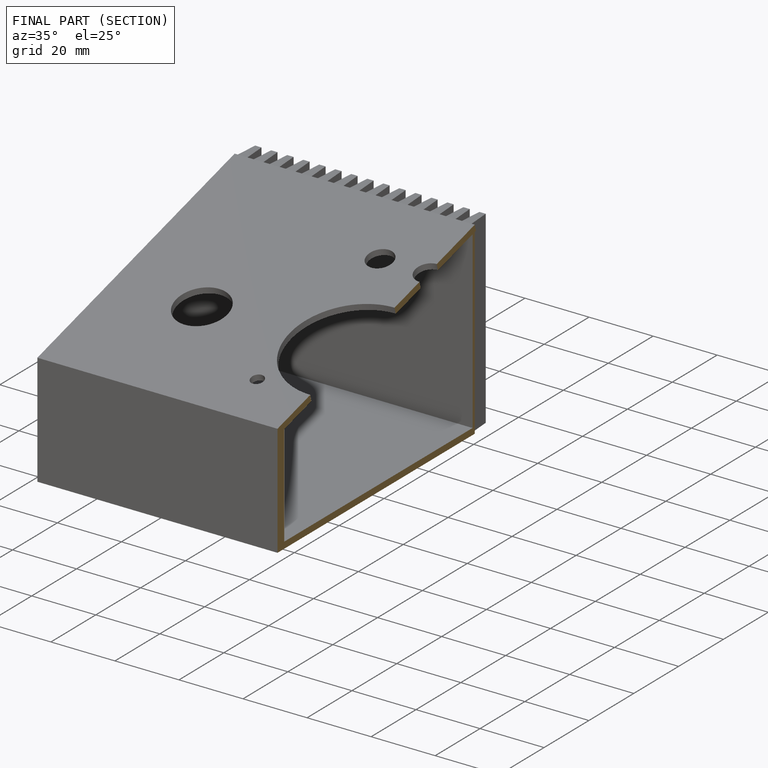
[diagram: finished part — half-section view (interior)]
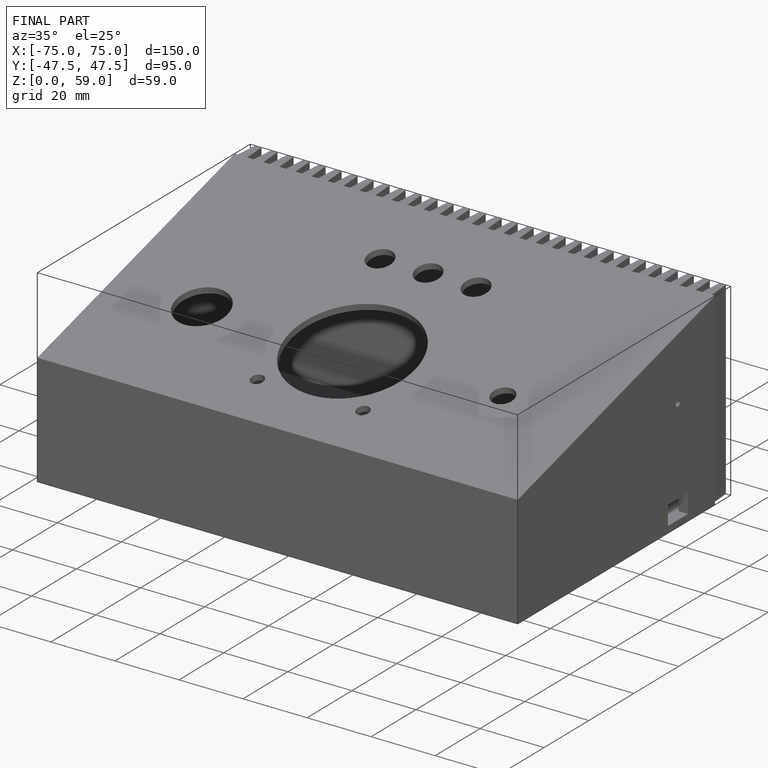
[diagram: finished part — iso view with bounding-box wireframe]
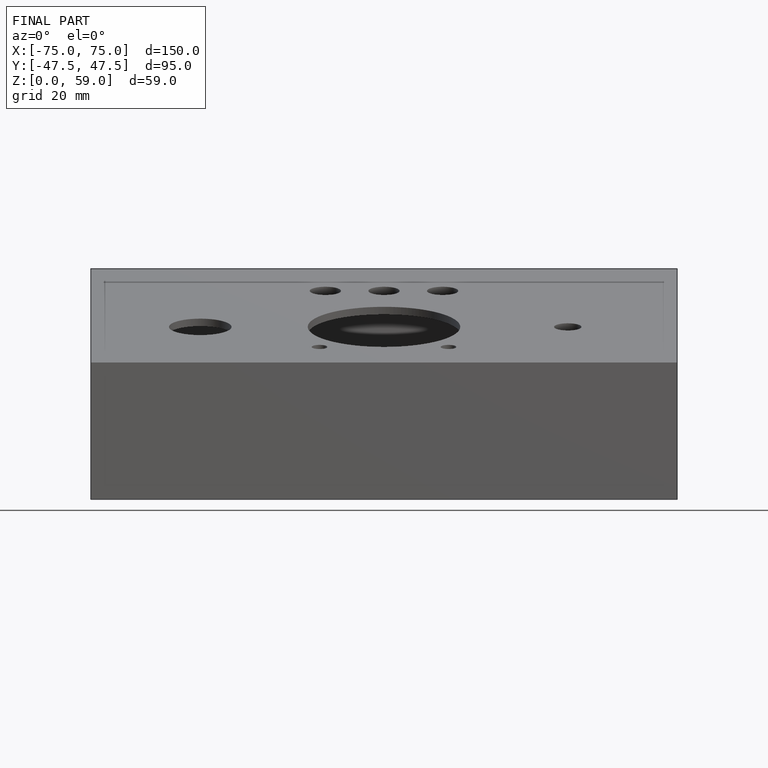
[diagram: finished part — front view with bounding-box wireframe]
